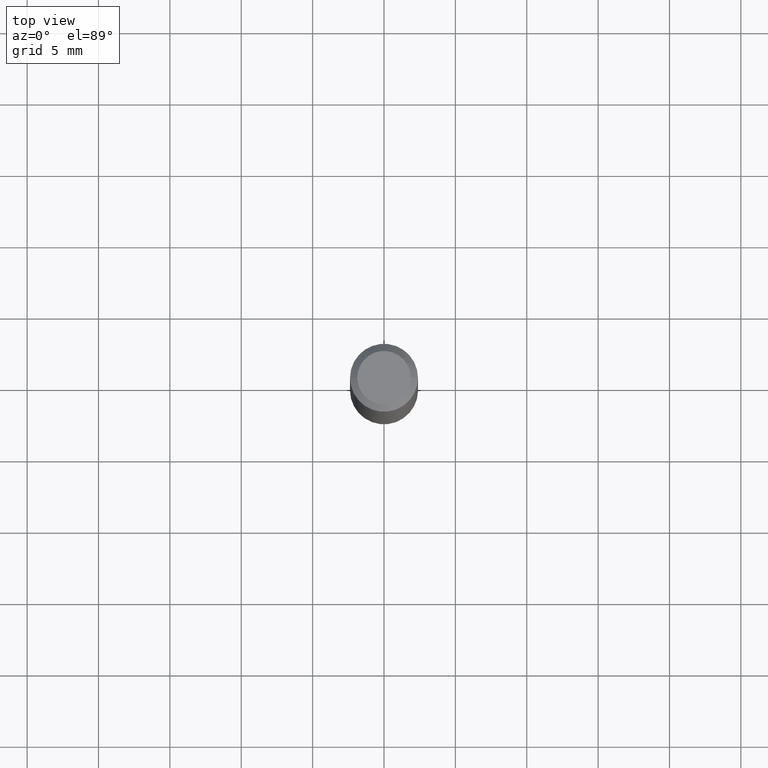
[diagram: clean part render]
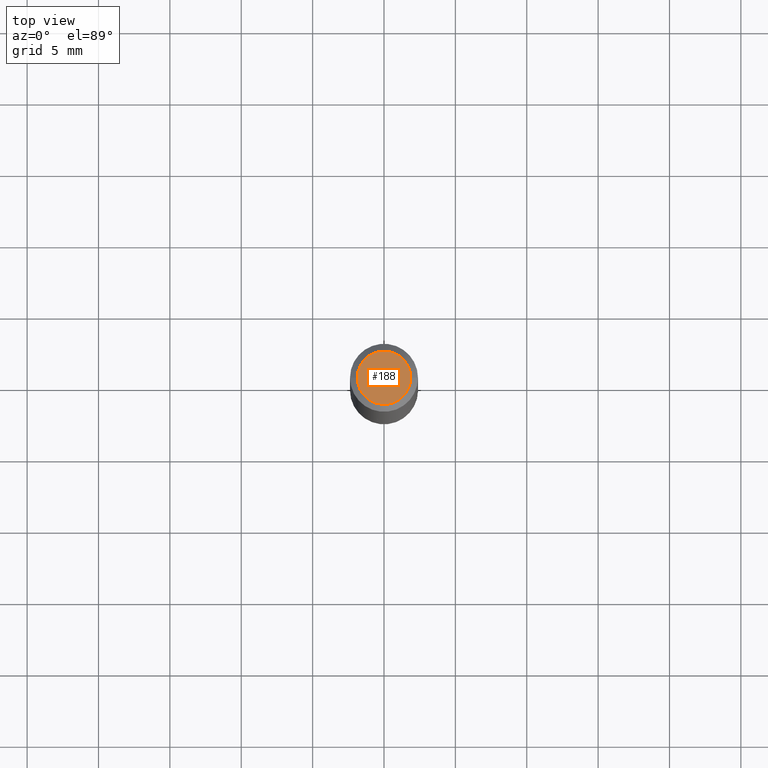
[diagram: same view with one face highlighted and labeled with its STEP entity id]
A machine part, top view. The second image highlights one B-rep face of the part: STEP entity #188.
In plain terms, the highlighted planar face has unit normal (0, -0, -1).
Its self-contained STEP definition (entity closure, byte-faithful):
#1 = DIRECTION ( 'NONE',  ( 1.000000000000000000, -6.982962677686265922E-15, 4.876176775795935232E-29 ) ) ;
#39 = CARTESIAN_POINT ( 'NONE',  ( 0.000000000000000000, 0.000000000000000000, 0.000000000000000000 ) ) ;
#43 = EDGE_CURVE ( 'NONE', #349, #109, #220, .T. ) ;
#51 = AXIS2_PLACEMENT_3D ( 'NONE', #222, #308, #1 ) ;
#84 = EDGE_CURVE ( 'NONE', #109, #349, #206, .T. ) ;
#95 = CARTESIAN_POINT ( 'NONE',  ( 5.149934974793613022E-16, 0.07374999999999988509, -2.574967487396815385E-16 ) ) ;
#109 = VERTEX_POINT ( 'NONE', #124 ) ;
#119 = DIRECTION ( 'NONE',  ( -2.445468806185136597E-29, 3.491481338843145583E-15, 1.000000000000000000 ) ) ;
#124 = CARTESIAN_POINT ( 'NONE',  ( 0.07374999999999988509, -6.094815207017963170E-16, 3.931526600461599449E-30 ) ) ;
#125 = ORIENTED_EDGE ( 'NONE', *, *, #84, .T. ) ;
#161 = AXIS2_PLACEMENT_3D ( 'NONE', #95, #228, #339 ) ;
#169 = FACE_OUTER_BOUND ( 'NONE', #330, .T. ) ;
#188 = ADVANCED_FACE ( 'NONE', ( #169 ), #282, .F. ) ;
#206 = CIRCLE ( 'NONE', #341, 0.07374999999999988509 ) ;
#220 = CIRCLE ( 'NONE', #51, 0.07374999999999988509 ) ;
#222 = CARTESIAN_POINT ( 'NONE',  ( 0.000000000000000000, 0.000000000000000000, 0.000000000000000000 ) ) ;
#228 = DIRECTION ( 'NONE',  ( 2.438088387897960049E-29, -3.491481338843145188E-15, -1.000000000000000000 ) ) ;
#264 = CARTESIAN_POINT ( 'NONE',  ( -0.07374999999999988509, 5.499083108677923596E-16, -3.723527850031187664E-30 ) ) ;
#282 = PLANE ( 'NONE',  #161 ) ;
#308 = DIRECTION ( 'NONE',  ( -2.445468806185136597E-29, 3.491481338843145583E-15, 1.000000000000000000 ) ) ;
#328 = ORIENTED_EDGE ( 'NONE', *, *, #43, .T. ) ;
#330 = EDGE_LOOP ( 'NONE', ( #328, #125 ) ) ;
#339 = DIRECTION ( 'NONE',  ( -1.000000000000000000, 6.982962677686265922E-15, -4.876176775795935793E-29 ) ) ;
#341 = AXIS2_PLACEMENT_3D ( 'NONE', #39, #119, #383 ) ;
#349 = VERTEX_POINT ( 'NONE', #264 ) ;
#383 = DIRECTION ( 'NONE',  ( 1.000000000000000000, -6.982962677686265922E-15, 4.876176775795935232E-29 ) ) ;